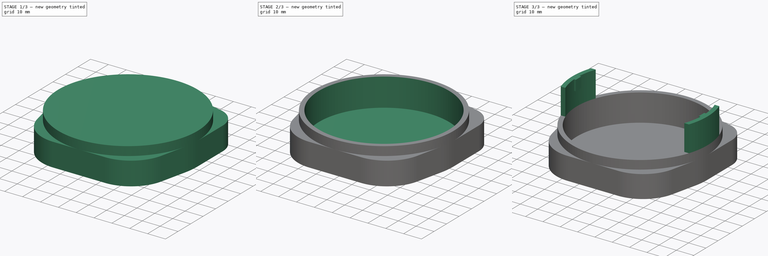
[diagram: build sequence overview — one tinted view per stage of 3, left to right]
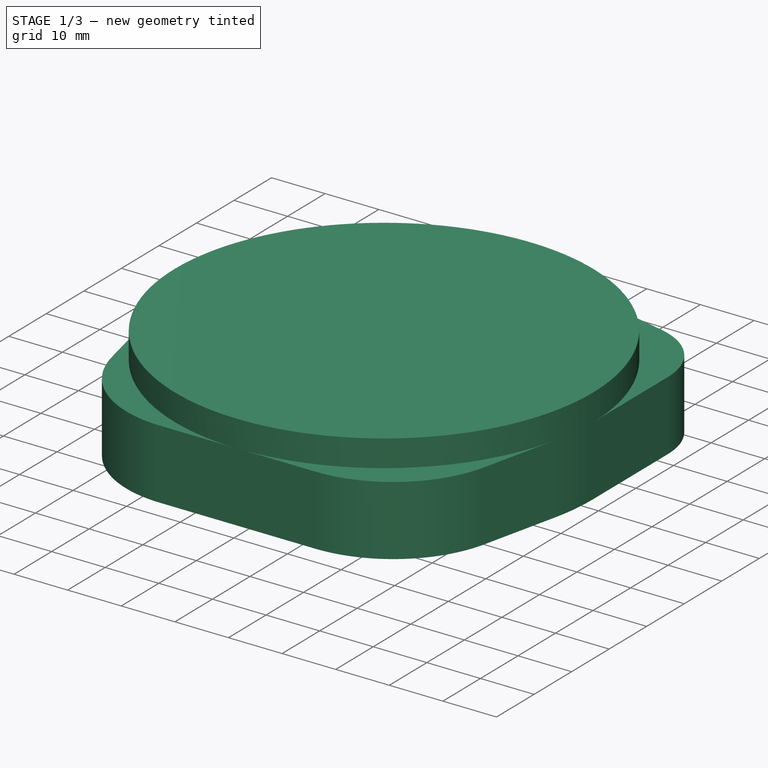
[diagram: stage 1 of 3 — iso view after this stage's code; geometry added in this stage tinted green]
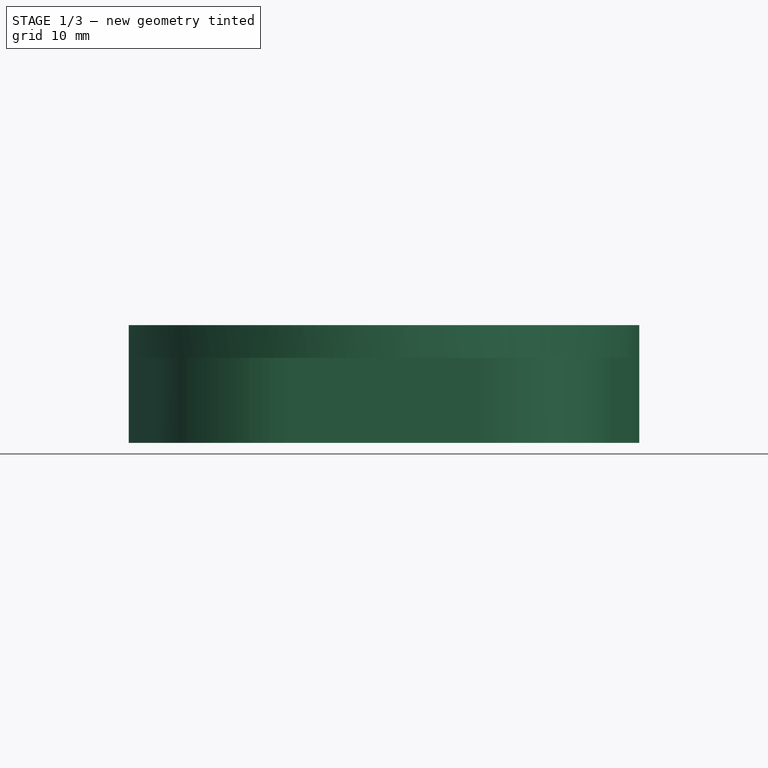
[diagram: stage 1 of 3 — front view after this stage's code; geometry added in this stage tinted green]
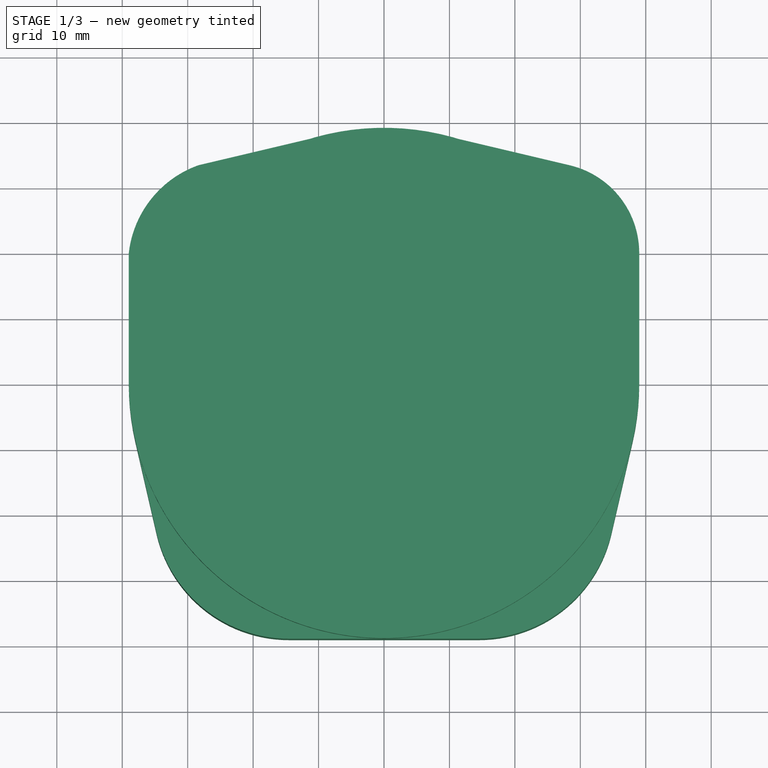
[diagram: stage 1 of 3 — top view after this stage's code; geometry added in this stage tinted green]
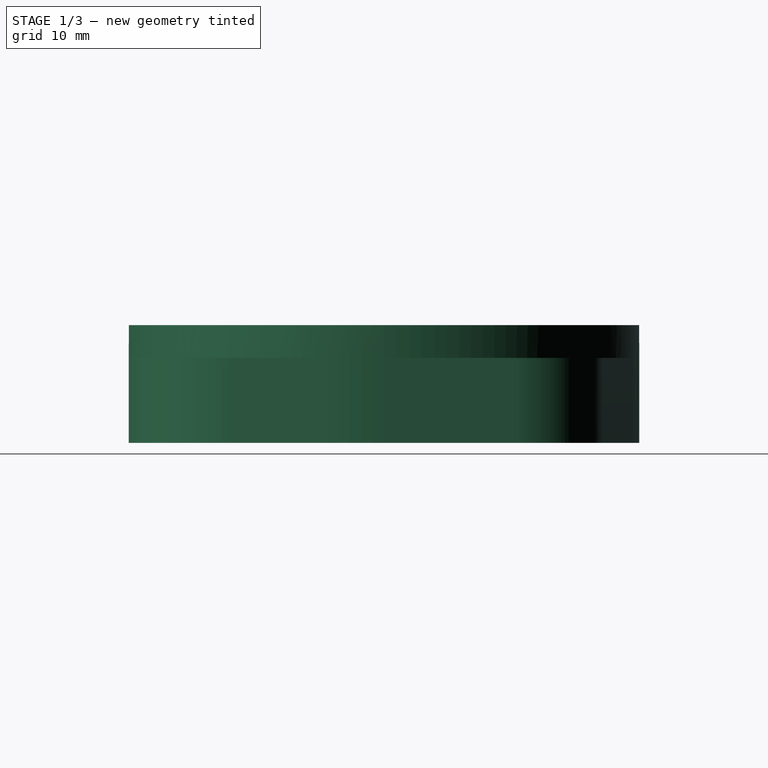
[diagram: stage 1 of 3 — right view after this stage's code; geometry added in this stage tinted green]
FCSTD DOCUMENT  (FreeCAD 0.18R16155 (Git))
Label: bodenhuelsendeckel
License: All rights reserved
LicenseURL: http://en.wikipedia.org/wiki/All_rights_reserved
objects: Sketcher::SketchObject×5, PartDesign::Pad×4, PartDesign::Pocket×1, PartDesign::Body×1
note: 16 computed .brp shape members not serialized (recipe doc carries the construction recipe); baked Part::Feature solids carry a one-line shape summary decoded from their .brp

FEATURE [Sketcher::SketchObject] Sketch
  MapMode = 5
  Support = -> [XY_Plane]
  sketch-geometry (16):
    g0: LineSegment StartX=8.98454 StartY=37.951 StartZ=0 EndX=28.3893 EndY=33.3571 EndZ=0
    g1: LineSegment StartX=39 StartY=-9.6e-15 StartZ=0 EndX=39 EndY=19.9411 EndZ=0
    g2: ArcOfCircle CenterX=25.2132 CenterY=19.9411 CenterZ=0 NormalX=0 NormalY=0 NormalZ=1 AngleXU=0 Radius=13.7868 StartAngle=1e-16 EndAngle=1.33834
    g3: GeomPoint X=32.1641 Y=24.0969 Z=0
    g4: LineSegment StartX=38.0047 StartY=-8.75472 StartZ=0 EndX=34.7507 EndY=-22.8803 EndZ=0
    g5: LineSegment StartX=4.03871e-06 StartY=-39 StartZ=0 EndX=14.4955 EndY=-39 EndZ=0
    g6: ArcOfCircle CenterX=14.4955 CenterY=-18.2143 CenterZ=0 NormalX=0 NormalY=0 NormalZ=1 AngleXU=0 Radius=20.7857 StartAngle=4.71239 EndAngle=6.05678
    g7: LineSegment StartX=-8.98454 StartY=37.951 StartZ=0 EndX=-28.3893 EndY=33.3571 EndZ=0
    g8: LineSegment StartX=-39 StartY=0 StartZ=0 EndX=-39 EndY=19.9411 EndZ=0
    g9: LineSegment StartX=-38.0047 StartY=-8.75472 StartZ=0 EndX=-34.7507 EndY=-22.8803 EndZ=0
    g10: LineSegment StartX=4.03871e-06 StartY=-39 StartZ=0 EndX=-14.4955 EndY=-39 EndZ=0
    g11: ArcOfCircle CenterX=-14.4955 CenterY=-18.2143 CenterZ=0 NormalX=0 NormalY=0 NormalZ=1 AngleXU=0 Radius=20.7857 StartAngle=3.368 EndAngle=4.71239
    g12: ArcOfCircle CenterX=-22.9184 CenterY=18.1261 CenterZ=0 NormalX=0 NormalY=0 NormalZ=1 AngleXU=0 Radius=16.1837 StartAngle=1.91564 EndAngle=3.02921
    g13: ArcOfCircle CenterX=-8.6e-15 CenterY=0 CenterZ=0 NormalX=0 NormalY=0 NormalZ=1 AngleXU=0 Radius=39 StartAngle=3.14159 EndAngle=3.368
    g14: ArcOfCircle CenterX=0 CenterY=0 CenterZ=0 NormalX=0 NormalY=0 NormalZ=1 AngleXU=0 Radius=39 StartAngle=6.05678 EndAngle=6.28319
    g15: ArcOfCircle CenterX=-8.6e-15 CenterY=0 CenterZ=0 NormalX=0 NormalY=0 NormalZ=1 AngleXU=0 Radius=39 StartAngle=1.33834 EndAngle=1.80326
  constraints (33):
    c: Vertical(g1)
    c: Tangent(g2,g0) = 1.5708
    c: Tangent(g2,g1) = -1.5708
    c: Distance(g3,g0) = 10
    c: Distance(g1,g3) = 8
    c: Horizontal(g5)
    c: Tangent(g6,g4) = 1.5708
    c: Tangent(g6,g5) = -1.5708
    c: Coincident(g10,g5)
    c: Coincident(g11,g9)
    c: Coincident(g11,g10)
    c: Coincident(g12,g8)
    c: Coincident(g12,g7)
    c: Symmetric(g7,g0,g-2)
    c: Symmetric(g8,g1,g-2)
    c: Symmetric(g9,g4,g-2)
    c: Symmetric(g10,g5,g-2)
    c: Coincident(g13,g8)
    c: Coincident(g13,g9)
    c: Radius(g13) = 39
    c: Radius(g15) = 39
    c: Symmetric(g1,g8,g-2)
    c: Symmetric(g4,g9,g-2)
    c: Tangent(g14,g1) = -1.5708
    c: Tangent(g14,g4) = 1.5708
    c: Coincident(g15,g7)
    c: Symmetric(g0,g7,g-2)
    c: Tangent(g15,g0) = 1.5708
    c: Coincident(g-1,g13)
    c: Coincident(g-1,g14)
    c: Coincident(g15,g13)
    c: Equal(g6,g11)
    c: Distance(g13,g5) = 39
FEATURE [PartDesign::Pad] Pad
  Length = 13
  Length2 = 100
  Profile = -> Sketch
  Type = 0
FEATURE [Sketcher::SketchObject] Sketch001
  MapMode = 5
  Placement = pos=(0,0,13) rot=(0,0,1;0rad)
  Support = -> [Pad]
  sketch-geometry (1):
    g0: Circle CenterX=0 CenterY=0 CenterZ=0 NormalX=0 NormalY=0 NormalZ=1 AngleXU=0 Radius=39
  constraints (2):
    c: Coincident(g0,g-1)
    c: Radius(g0) = 39
FEATURE [PartDesign::Pad] Pad001
  BaseFeature = -> Pad
  Length = 5
  Length2 = 100
  Profile = -> Sketch001
  Type = 0
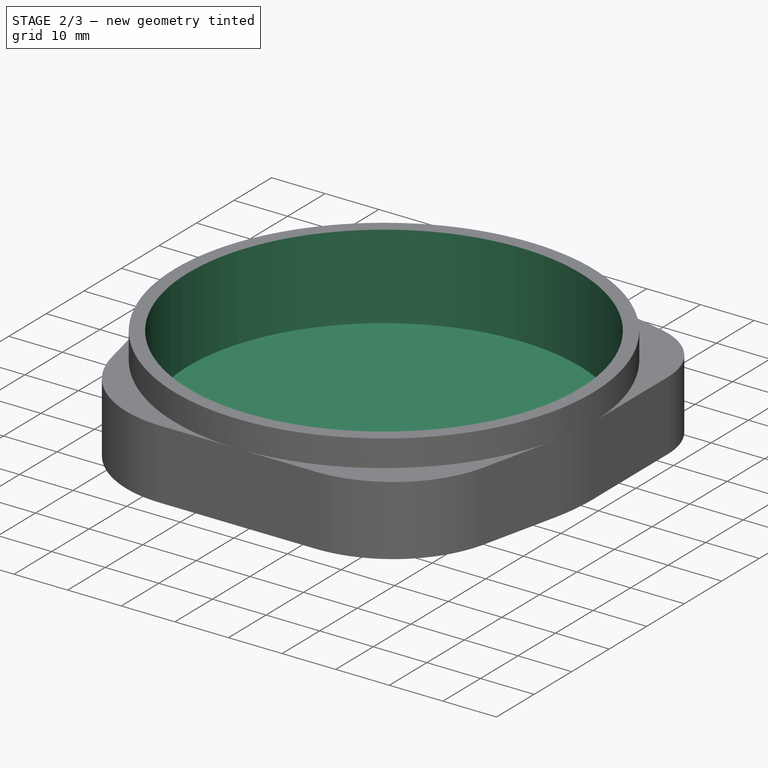
[diagram: stage 2 of 3 — iso view after this stage's code; geometry added in this stage tinted green]
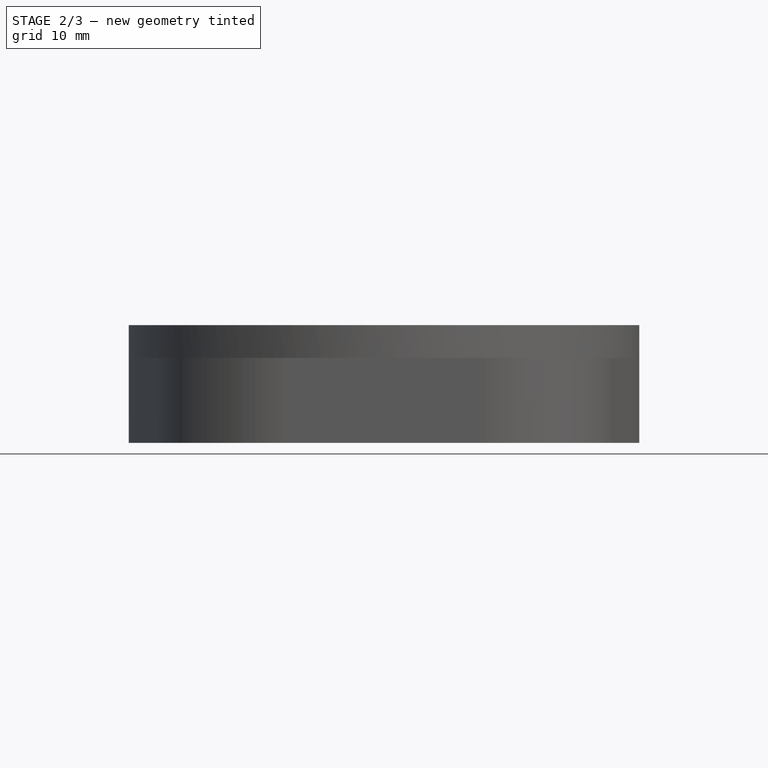
[diagram: stage 2 of 3 — front view after this stage's code; geometry added in this stage tinted green]
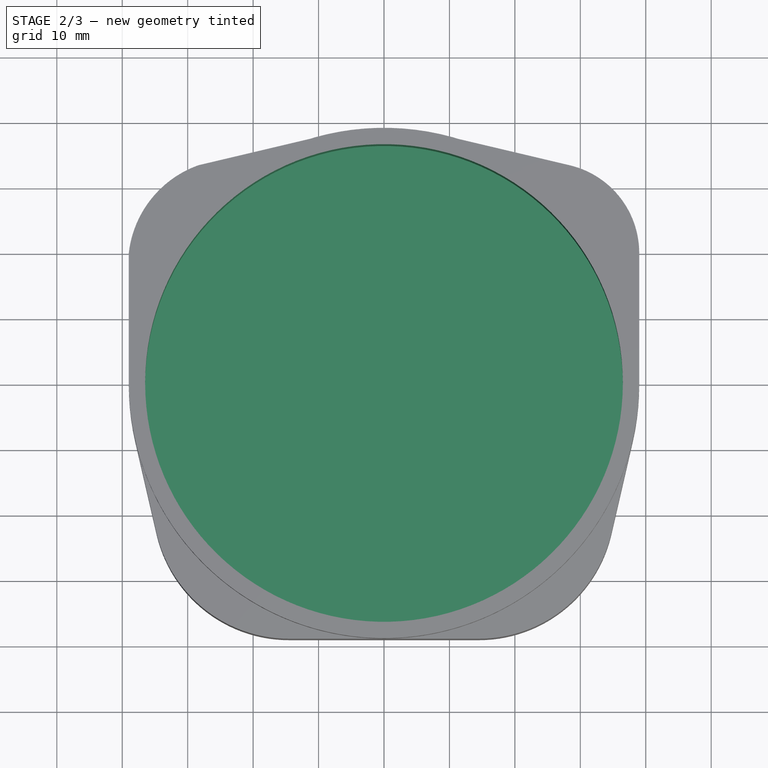
[diagram: stage 2 of 3 — top view after this stage's code; geometry added in this stage tinted green]
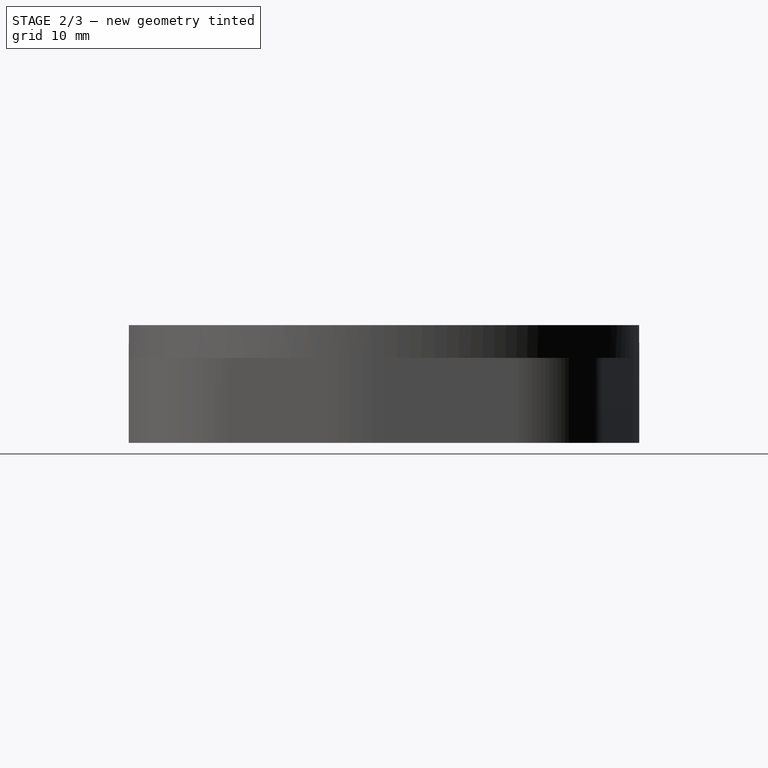
[diagram: stage 2 of 3 — right view after this stage's code; geometry added in this stage tinted green]
FEATURE [Sketcher::SketchObject] Sketch002
  ExternalGeometry = -> [Pad001]
  MapMode = 5
  Placement = pos=(0,0,18) rot=(0,0,1;0rad)
  Support = -> [Pad001]
  sketch-geometry (1):
    g0: Circle CenterX=0 CenterY=0 CenterZ=0 NormalX=0 NormalY=0 NormalZ=1 AngleXU=0 Radius=36.5
  constraints (2):
    c: Coincident(g0,g-1)
    c: Radius(g0) = 36.5
FEATURE [PartDesign::Pocket] Pocket
  BaseFeature = -> Pad001
  Length = 15.75
  Length2 = 100
  Profile = -> Sketch002
  Type = 0
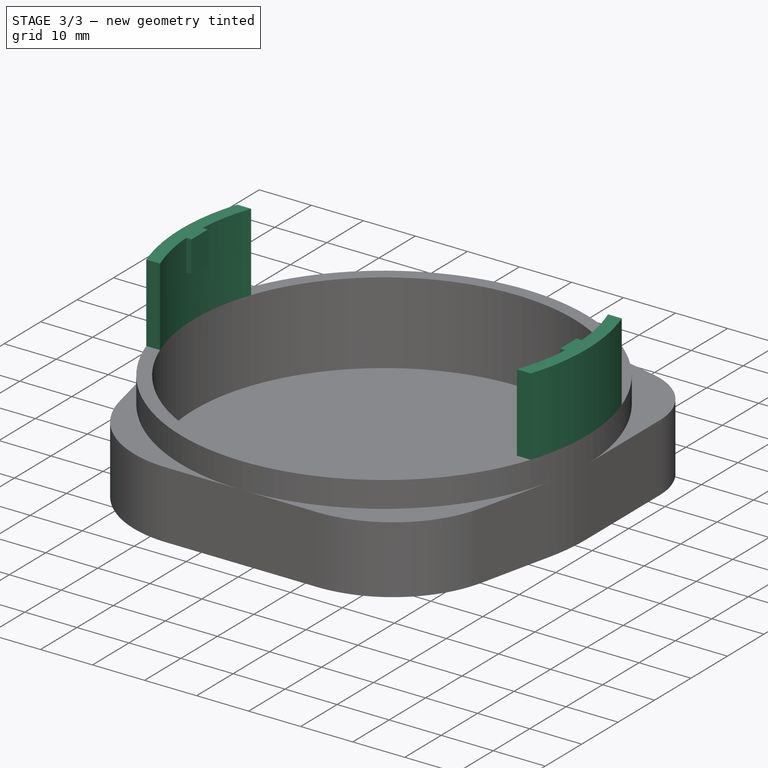
[diagram: stage 3 of 3 — iso view after this stage's code; geometry added in this stage tinted green]
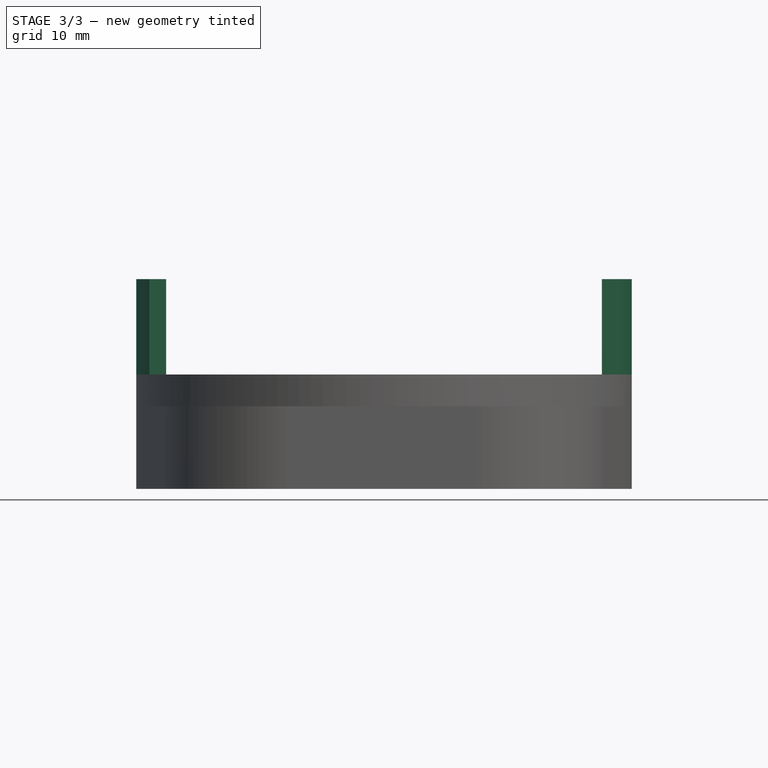
[diagram: stage 3 of 3 — front view after this stage's code; geometry added in this stage tinted green]
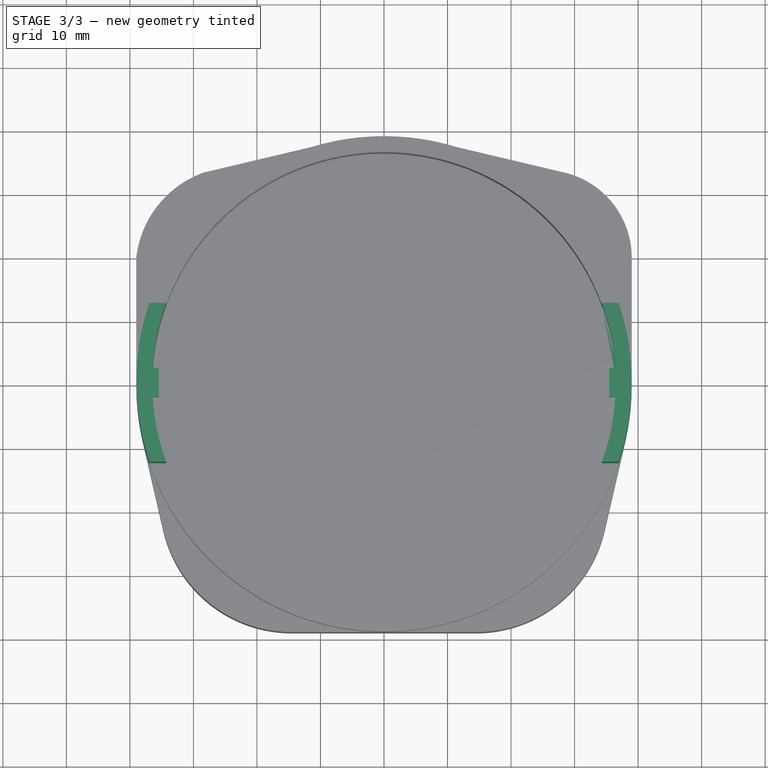
[diagram: stage 3 of 3 — top view after this stage's code; geometry added in this stage tinted green]
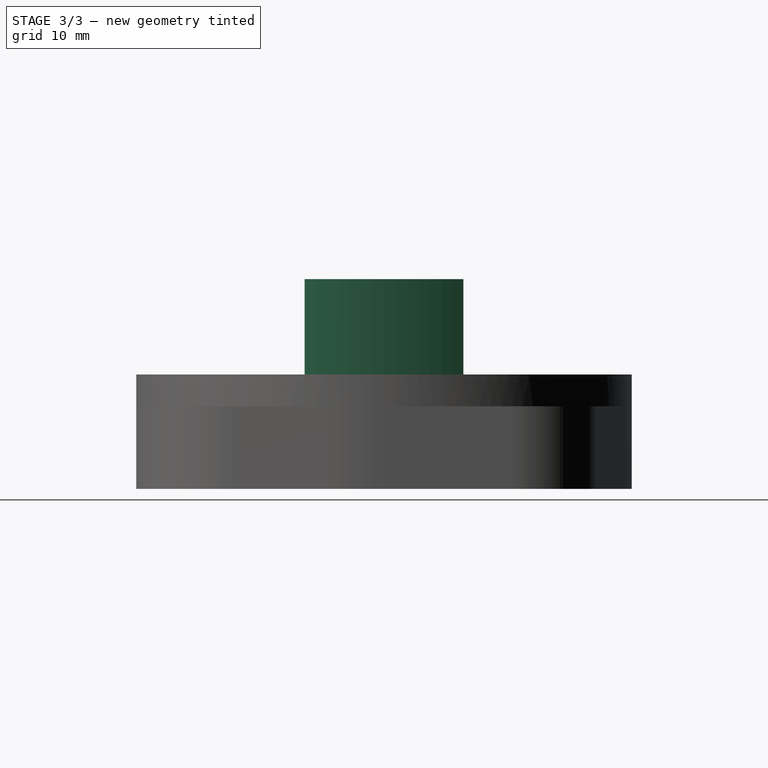
[diagram: stage 3 of 3 — right view after this stage's code; geometry added in this stage tinted green]
FEATURE [Sketcher::SketchObject] Sketch003
  ExternalGeometry = -> [Pocket]
  MapMode = 5
  Placement = pos=(0,0,18) rot=(0,0,1;0rad)
  Support = -> [Pocket]
  sketch-geometry (10):
    g0: ArcOfCircle CenterX=0.0911563 CenterY=-3.7e-15 CenterZ=0 NormalX=0 NormalY=0 NormalZ=1 AngleXU=0 Radius=39.0864 StartAngle=2.81607 EndAngle=3.46712
    g1: LineSegment StartX=-36.9425 StartY=12.5 StartZ=0 EndX=-34.2929 EndY=12.5 EndZ=0
    g2: LineSegment StartX=-36.9425 StartY=-12.5 StartZ=0 EndX=-34.2929 EndY=-12.5 EndZ=0
    g3: ArcOfCircle CenterX=2.3e-14 CenterY=1.1e-15 CenterZ=0 NormalX=0 NormalY=0 NormalZ=1 AngleXU=0 Radius=36.5 StartAngle=2.79205 EndAngle=3.49113
    g4: ArcOfCircle CenterX=0.0911563 CenterY=-3.7e-15 CenterZ=0 NormalX=0 NormalY=0 NormalZ=1 AngleXU=0 Radius=36.4144 StartAngle=5.93279 EndAngle=6.63358
    g5: LineSegment [constr] StartX=-96.1668 StartY=12.5 StartZ=0 EndX=86.2477 EndY=12.5 EndZ=0
    g6: LineSegment StartX=34.2929 StartY=12.5 StartZ=0 EndX=36.9425 EndY=12.5 EndZ=0
    g7: LineSegment [constr] StartX=-91.0489 StartY=-12.5 StartZ=0 EndX=81.8274 EndY=-12.5 EndZ=0
    g8: LineSegment StartX=34.2929 StartY=-12.5 StartZ=0 EndX=36.9425 EndY=-12.5 EndZ=0
    g9: ArcOfCircle CenterX=-3.28e-14 CenterY=-9e-16 CenterZ=0 NormalX=0 NormalY=0 NormalZ=1 AngleXU=0 Radius=39 StartAngle=5.95691 EndAngle=6.60946
  constraints (31):
    c: PointOnObject(g0,g-4)
    c: PointOnObject(g0,g-4)
    c: DistanceY(g-1,g0) = 12.5
    c: DistanceY(g-1,g0) = -12.5
    c: Coincident(g1,g0)
    c: PointOnObject(g1,g-3)
    c: Coincident(g2,g0)
    c: PointOnObject(g2,g-3)
    c: Coincident(g3,g1)
    c: Coincident(g3,g2)
    c: Tangent(g3,g-3)
    c: Coincident(g4,g0)
    c: PointOnObject(g4,g-3)
    c: PointOnObject(g4,g-3)
    c: Horizontal(g5)
    c: PointOnObject(g1,g5)
    c: PointOnObject(g0,g5)
    c: PointOnObject(g4,g5)
    c: PointOnObject(g6,g-4)
    c: PointOnObject(g6,g5)
    c: Coincident(g6,g4)
    c: Horizontal(g7)
    c: PointOnObject(g0,g7)
    c: PointOnObject(g2,g7)
    c: PointOnObject(g4,g7)
    c: Coincident(g8,g4)
    c: PointOnObject(g8,g-4)
    c: PointOnObject(g8,g7)
    c: Coincident(g9,g6)
    c: Coincident(g9,g8)
    c: Tangent(g9,g-4)
FEATURE [PartDesign::Pad] Pad002
  BaseFeature = -> Pocket
  Length = 15
  Length2 = 100
  Profile = -> Sketch003
  Type = 0
FEATURE [Sketcher::SketchObject] Sketch004
  ExternalGeometry = -> [Pad002]
  MapMode = 5
  Placement = pos=(0,0,33) rot=(0,0,1;0rad)
  Support = -> [Pad002]
  sketch-geometry (10):
    g0: LineSegment StartX=-37.7476 StartY=2.25 StartZ=0 EndX=-35.4306 EndY=2.25 EndZ=0
    g1: LineSegment StartX=-35.4306 StartY=2.25 StartZ=0 EndX=-35.4306 EndY=-2.25 EndZ=0
    g2: LineSegment StartX=-35.4306 StartY=-2.25 StartZ=0 EndX=-37.7476 EndY=-2.25 EndZ=0
    g3: LineSegment StartX=-37.7476 StartY=-2.25 StartZ=0 EndX=-37.7476 EndY=2.25 EndZ=0
    g4: GeomPoint X=-36.4306 Y=2.25 Z=0
    g5: LineSegment StartX=35.4359 StartY=2.25 StartZ=0 EndX=37.5002 EndY=2.25 EndZ=0
    g6: LineSegment StartX=37.5002 StartY=2.25 StartZ=0 EndX=37.5002 EndY=-2.25 EndZ=0
    g7: LineSegment StartX=37.5002 StartY=-2.25 StartZ=0 EndX=35.4359 EndY=-2.25 EndZ=0
    g8: LineSegment StartX=35.4359 StartY=-2.25 StartZ=0 EndX=35.4359 EndY=2.25 EndZ=0
    g9: GeomPoint X=36.4359 Y=2.25 Z=0
  constraints (26):
    c: Coincident(g0,g1)
    c: Coincident(g1,g2)
    c: Coincident(g2,g3)
    c: Coincident(g3,g0)
    c: Horizontal(g0)
    c: Horizontal(g2)
    c: Vertical(g1)
    c: Vertical(g3)
    c: DistanceY(g1,g1) = 4.5
    c: DistanceY(g-1,g0) = 2.25
    c: PointOnObject(g4,g0)
    c: PointOnObject(g4,g-3)
    c: Distance(g0,g4) = 1
    c: Coincident(g5,g6)
    c: Coincident(g6,g7)
    c: Coincident(g7,g8)
    c: Coincident(g8,g5)
    c: Horizontal(g5)
    c: Horizontal(g7)
    c: Vertical(g6)
    c: Vertical(g8)
    c: PointOnObject(g9,g-4)
    c: PointOnObject(g9,g5)
    c: DistanceX(g5,g9) = 1
    c: DistanceY(g-1,g5) = 2.25
    c: DistanceY(g8,g8) = 4.5
FEATURE [PartDesign::Pad] Pad003
  BaseFeature = -> Pad002
  Length = 6
  Length2 = 100
  Profile = -> Sketch004
  Reversed = true
  Type = 0
FEATURE [PartDesign::Body] Body
  Group = -> [Sketch,Pad,Sketch001,Pad001,Sketch002,Pocket,Sketch003,Pad002,Sketch004,Pad003]
  Origin = -> Origin
  Tip = -> Pad003
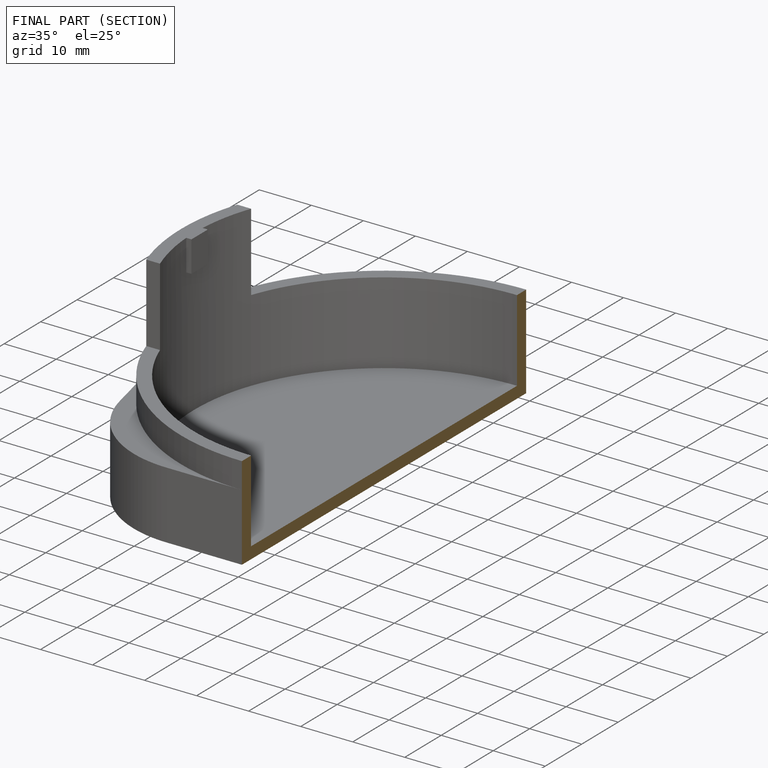
[diagram: finished part — half-section view (interior)]
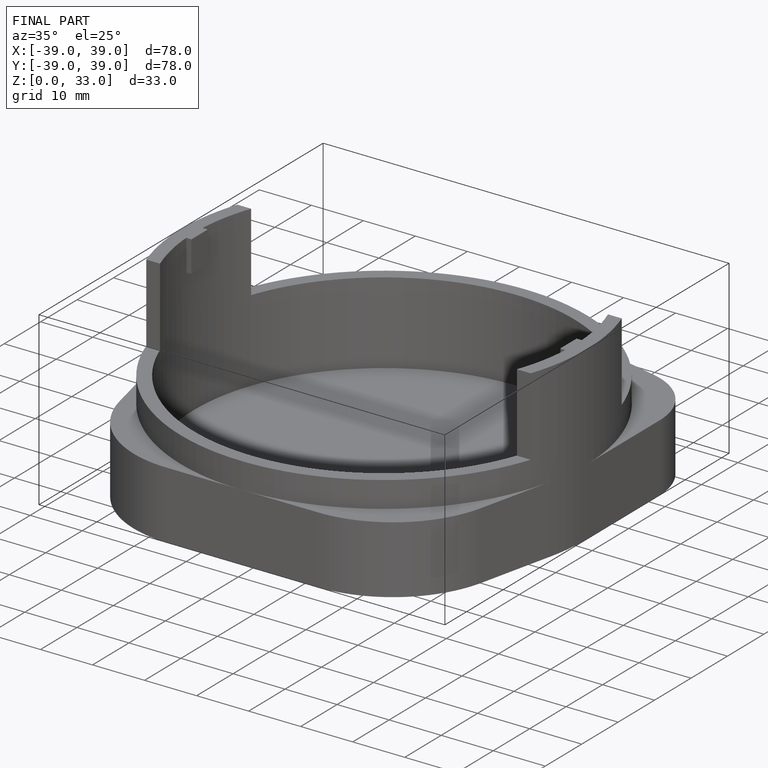
[diagram: finished part — iso view with bounding-box wireframe]
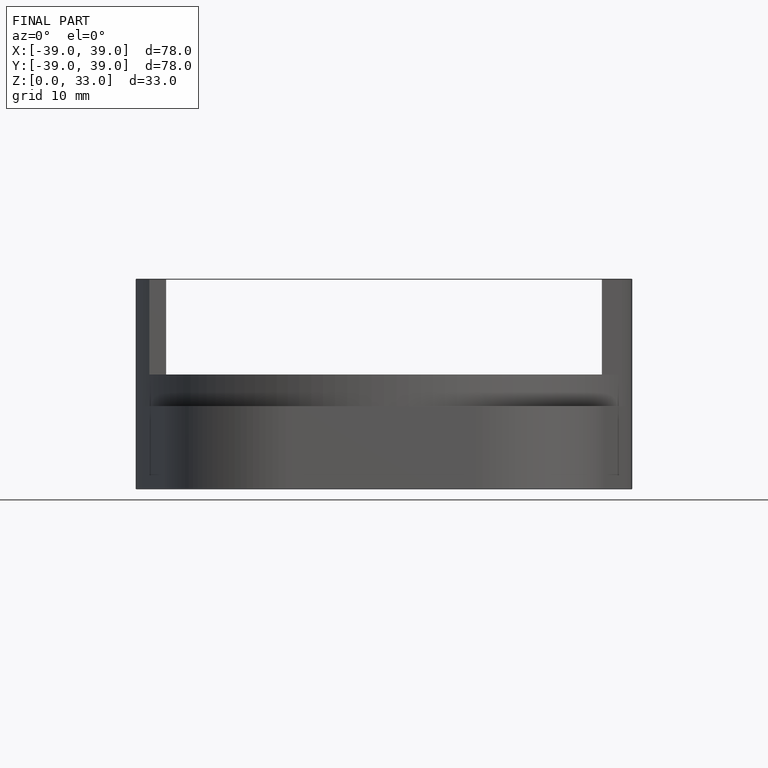
[diagram: finished part — front view with bounding-box wireframe]
